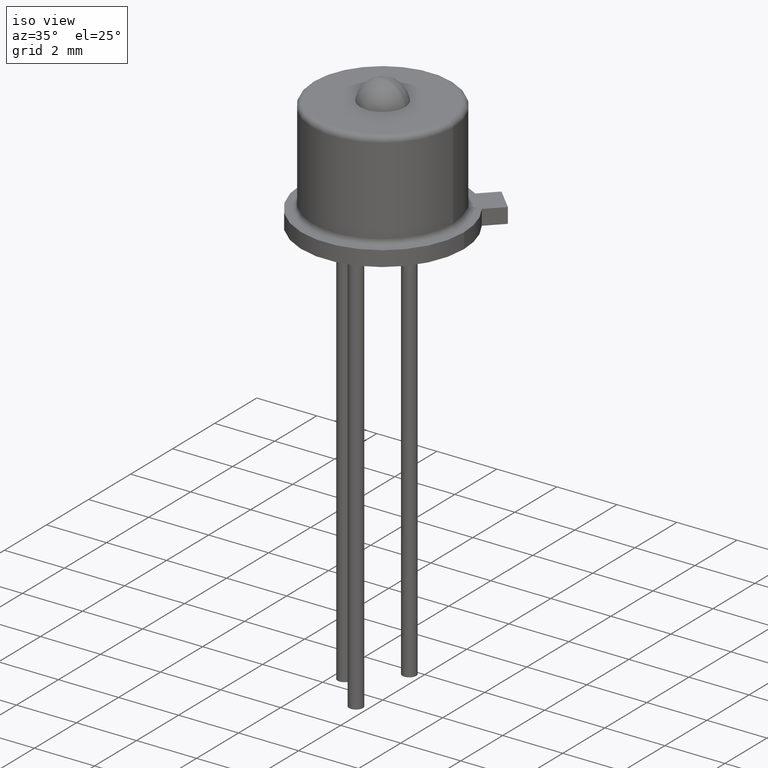
[diagram: clean part render]
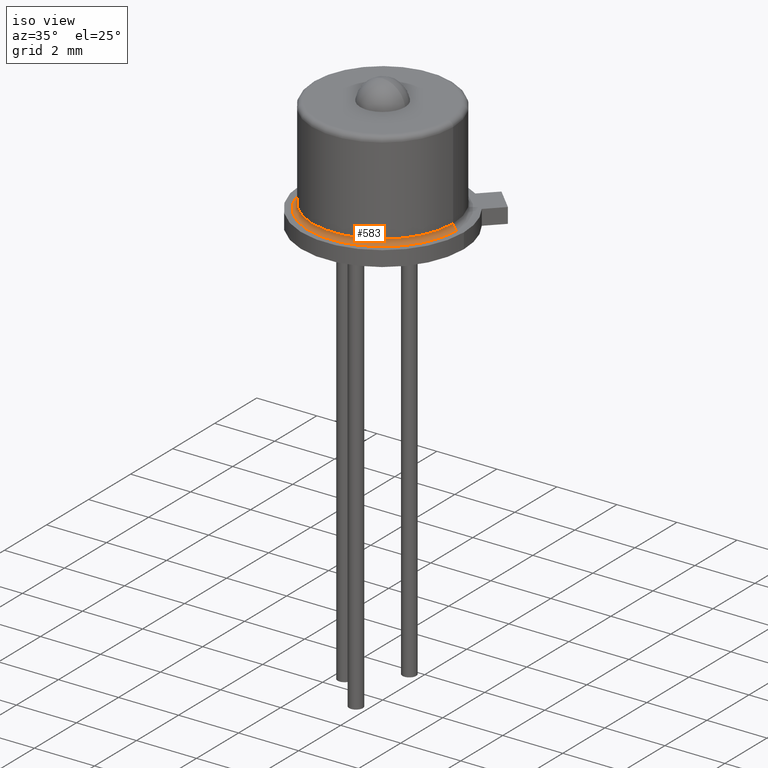
[diagram: same view with one face highlighted and labeled with its STEP entity id]
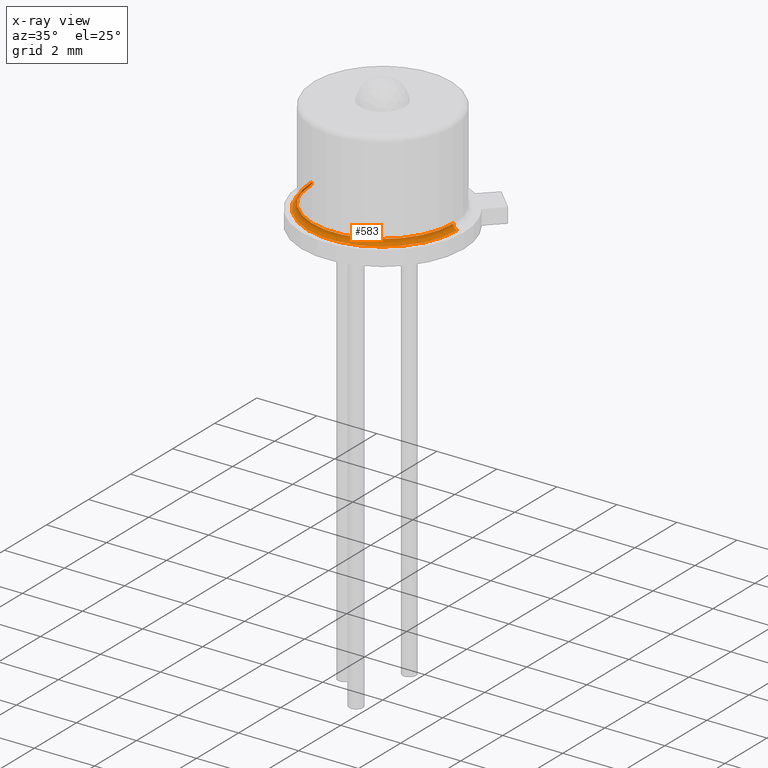
[diagram: x-ray of the same camera — body ghosted, the highlighted face saturated]
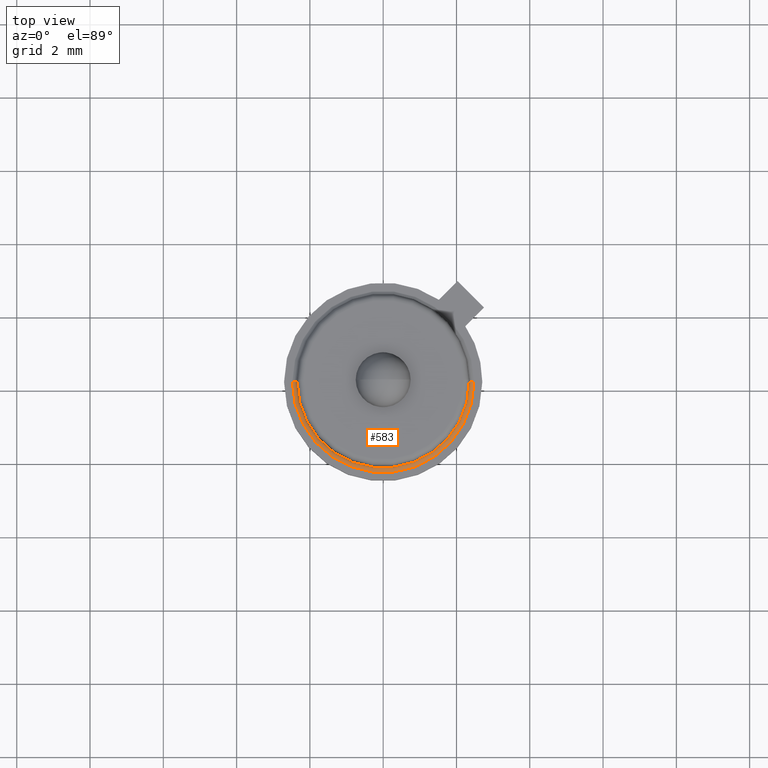
[diagram: same view with one face highlighted and labeled with its STEP entity id]
A machine part, iso view. The second image highlights one B-rep face of the part: STEP entity #583.
The next image is the same camera in x-ray: the body ghosted, the highlighted face saturated — about 1% of this face is hidden behind the body in this view.
A second angle (top view) of the same face is appended — the face is thin or edge-on in the first view.
In plain terms, the highlighted toroidal blend (fillet) surface has major radius 2.5273 mm and minor (blend) radius 0.1778 mm.
Its self-contained STEP definition (entity closure, byte-faithful):
#15 = ORIENTED_EDGE ( 'NONE', *, *, #656, .T. ) ;
#16 = ORIENTED_EDGE ( 'NONE', *, *, #659, .T. ) ;
#23 = ORIENTED_EDGE ( 'NONE', *, *, #655, .F. ) ;
#169 = VERTEX_POINT ( 'NONE', #1523 ) ;
#170 = VERTEX_POINT ( 'NONE', #1524 ) ;
#175 = VERTEX_POINT ( 'NONE', #1529 ) ;
#176 = VERTEX_POINT ( 'NONE', #1530 ) ;
#212 = EDGE_LOOP ( 'NONE', ( #16, #1487, #15, #23 ) ) ;
#583 = ADVANCED_FACE ( 'NONE', ( #817 ), #1221, .F. ) ;
#655 = EDGE_CURVE ( 'NONE', #169, #176, #1337, .T. ) ;
#656 = EDGE_CURVE ( 'NONE', #175, #176, #1338, .T. ) ;
#657 = EDGE_CURVE ( 'NONE', #170, #175, #1335, .T. ) ;
#659 = EDGE_CURVE ( 'NONE', #169, #170, #1340, .T. ) ;
#817 = FACE_OUTER_BOUND ( 'NONE', #212, .T. ) ;
#895 = AXIS2_PLACEMENT_3D ( 'NONE', #991, #1004, #1005 ) ;
#991 = CARTESIAN_POINT ( 'NONE',  ( 0.0000000000000000000, 0.0000000000000000000, 0.02669046243955909600 ) ) ;
#1004 = DIRECTION ( 'NONE',  ( -0.0000000000000000000, -0.0000000000000000000, -1.000000000000000000 ) ) ;
#1005 = DIRECTION ( 'NONE',  ( -1.000000000000000000, 0.0000000000000000000, 0.0000000000000000000 ) ) ;
#1221 = TOROIDAL_SURFACE ( 'NONE', #895, 0.09950000000000000500, 0.007000000000000001900 ) ;
#1335 = CIRCLE ( 'NONE', #1363, 0.007000000000000003600 ) ;
#1337 = CIRCLE ( 'NONE', #1361, 0.007000000000000003600 ) ;
#1338 = CIRCLE ( 'NONE', #1362, 0.09249999999999999900 ) ;
#1340 = CIRCLE ( 'NONE', #1364, 0.09754502105545957700 ) ;
#1361 = AXIS2_PLACEMENT_3D ( 'NONE', #1389, #1390, #1391 ) ;
#1362 = AXIS2_PLACEMENT_3D ( 'NONE', #1393, #1394, #1395 ) ;
#1363 = AXIS2_PLACEMENT_3D ( 'NONE', #1398, #1399, #1400 ) ;
#1364 = AXIS2_PLACEMENT_3D ( 'NONE', #1401, #1402, #1403 ) ;
#1389 = CARTESIAN_POINT ( 'NONE',  ( -0.09950000000000000500, 0.0000000000000000000, 0.02669046243955909600 ) ) ;
#1390 = DIRECTION ( 'NONE',  ( 0.0000000000000000000, -1.000000000000000000, 0.0000000000000000000 ) ) ;
#1391 = DIRECTION ( 'NONE',  ( 0.0000000000000000000, 0.0000000000000000000, -1.000000000000000000 ) ) ;
#1393 = CARTESIAN_POINT ( 'NONE',  ( 0.0000000000000000000, 0.0000000000000000000, 0.02669046243955909600 ) ) ;
#1394 = DIRECTION ( 'NONE',  ( -0.0000000000000000000, -0.0000000000000000000, -1.000000000000000000 ) ) ;
#1395 = DIRECTION ( 'NONE',  ( -1.000000000000000000, 0.0000000000000000000, 0.0000000000000000000 ) ) ;
#1398 = CARTESIAN_POINT ( 'NONE',  ( 0.09950000000000000500, 1.218523565151616500E-017, 0.02669046243955909600 ) ) ;
#1399 = DIRECTION ( 'NONE',  ( -1.224646799147353200E-016, 1.000000000000000000, 0.0000000000000000000 ) ) ;
#1400 = DIRECTION ( 'NONE',  ( -1.000000000000000000, -1.224646799147352000E-016, 0.0000000000000000000 ) ) ;
#1401 = CARTESIAN_POINT ( 'NONE',  ( 0.0000000000000000000, 0.0000000000000000000, 0.01996900000000000100 ) ) ;
#1402 = DIRECTION ( 'NONE',  ( 0.0000000000000000000, 0.0000000000000000000, 1.000000000000000000 ) ) ;
#1403 = DIRECTION ( 'NONE',  ( -1.000000000000000000, 0.0000000000000000000, 0.0000000000000000000 ) ) ;
#1487 = ORIENTED_EDGE ( 'NONE', *, *, #657, .T. ) ;
#1523 = CARTESIAN_POINT ( 'NONE',  ( -0.09754502105545957700, 0.0000000000000000000, 0.01996900000000000100 ) ) ;
#1524 = CARTESIAN_POINT ( 'NONE',  ( 0.09754502105545957700, 1.194581978083297400E-017, 0.01996900000000000100 ) ) ;
#1529 = CARTESIAN_POINT ( 'NONE',  ( 0.09249999999999999900, 1.132798289211301800E-017, 0.02669046243955909600 ) ) ;
#1530 = CARTESIAN_POINT ( 'NONE',  ( -0.09249999999999999900, 0.0000000000000000000, 0.02669046243955909600 ) ) ;